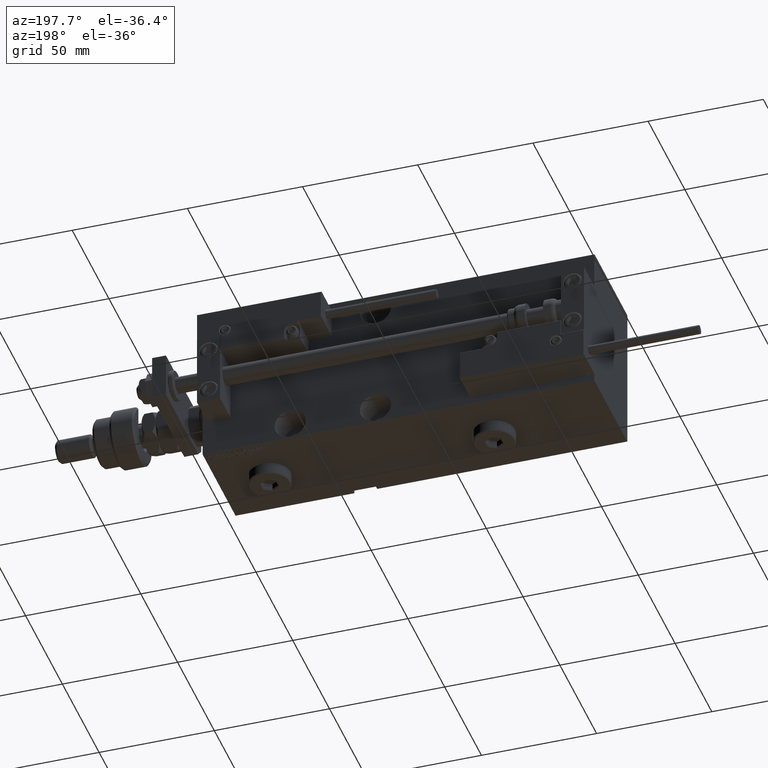
[diagram: clean part render]
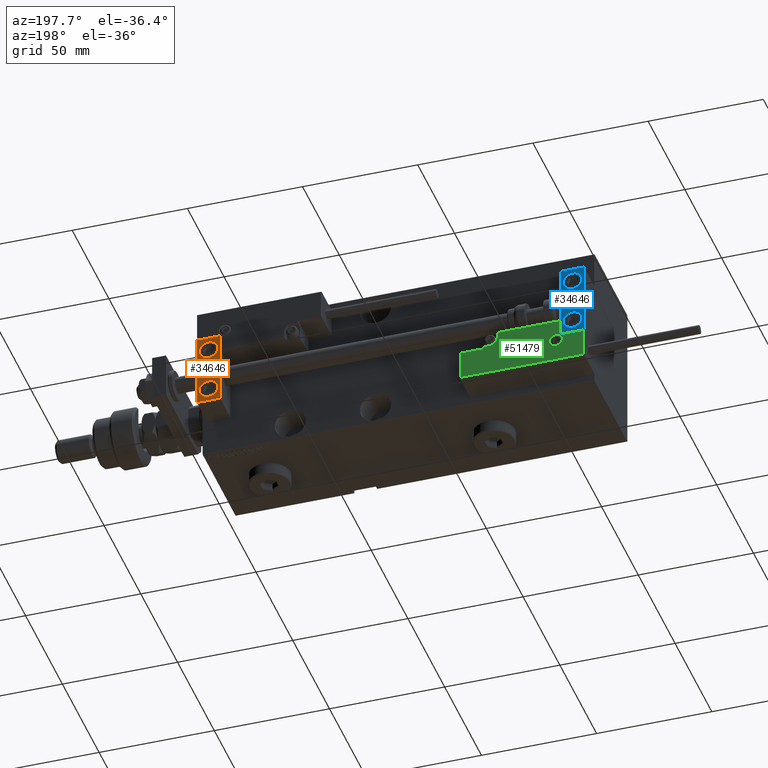
[diagram: same view with three faces highlighted in distinct colors, each labeled with its STEP entity id]
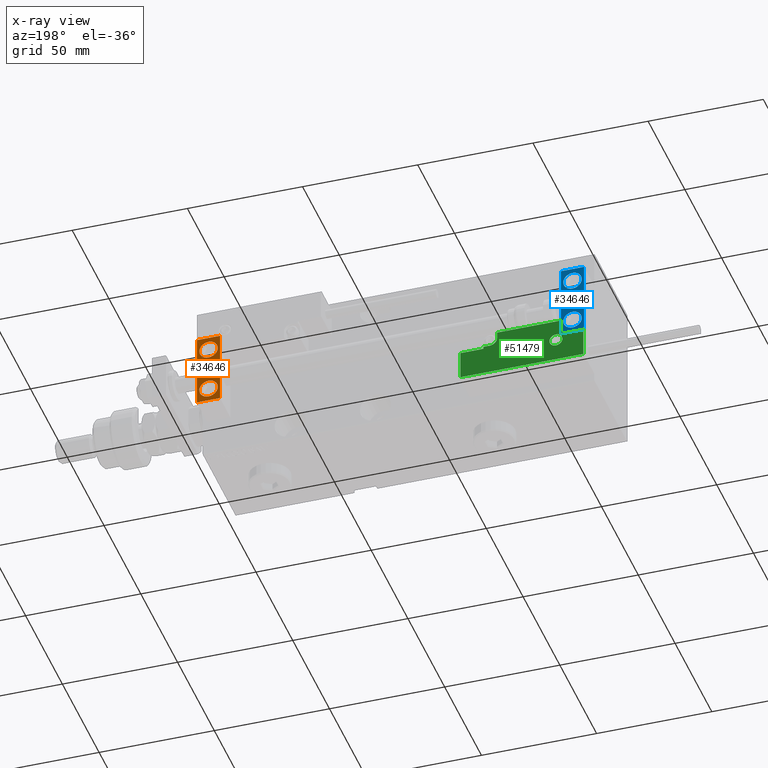
[diagram: x-ray of the same camera — body ghosted, the three highlighted faces saturated]
A machine part, auxiliary view with three faces highlighted in distinct colors.
The next image is the same camera in x-ray (body ghosted, the three faces saturated) — at least one of them is partly hidden behind the body in this view.
Their STEP definitions:

[orange] entity #34646 — the highlighted planar face has unit normal (0, 1, 0).
#1629 = DIRECTION ( 'NONE',  ( 0.000000000000000000, 1.000000000000000000, -6.065466699219605527E-17 ) ) ;
#1776 = CARTESIAN_POINT ( 'NONE',  ( 0.000000000000000000, 7.000000000000000000, 15.99999999999999289 ) ) ;
#2781 = EDGE_CURVE ( 'NONE', #3088, #15654, #49762, .T. ) ;
#2899 = DIRECTION ( 'NONE',  ( 1.848892746611746419E-32, -1.000000000000000000, 6.616381192988677562E-17 ) ) ;
#3088 = VERTEX_POINT ( 'NONE', #25826 ) ;
#5323 = CARTESIAN_POINT ( 'NONE',  ( 10.00000000000000000, 7.000000000000000000, 15.99999999999999289 ) ) ;
#5410 = ORIENTED_EDGE ( 'NONE', *, *, #31654, .F. ) ;
#6004 = ORIENTED_EDGE ( 'NONE', *, *, #14719, .T. ) ;
#6297 = CARTESIAN_POINT ( 'NONE',  ( 5.000000000000000888, 6.999999999999999112, -10.00000000000000178 ) ) ;
#6783 = AXIS2_PLACEMENT_3D ( 'NONE', #34580, #34314, #34048 ) ;
#7239 = DIRECTION ( 'NONE',  ( 0.000000000000000000, 0.000000000000000000, 1.000000000000000000 ) ) ;
#7829 = VERTEX_POINT ( 'NONE', #34836 ) ;
#10105 = ORIENTED_EDGE ( 'NONE', *, *, #33243, .T. ) ;
#10490 = EDGE_CURVE ( 'NONE', #45674, #37100, #49261, .T. ) ;
#12777 = CIRCLE ( 'NONE', #36165, 4.000000000000000888 ) ;
#13663 = AXIS2_PLACEMENT_3D ( 'NONE', #32500, #2899, #7239 ) ;
#13792 = ORIENTED_EDGE ( 'NONE', *, *, #51170, .T. ) ;
#14342 = EDGE_CURVE ( 'NONE', #15654, #3088, #12777, .T. ) ;
#14374 = CARTESIAN_POINT ( 'NONE',  ( 5.000000000000000888, 6.999999999999999112, -10.00000000000000178 ) ) ;
#14677 = FACE_BOUND ( 'NONE', #18217, .T. ) ;
#14719 = EDGE_CURVE ( 'NONE', #22455, #50206, #37105, .T. ) ;
#15654 = VERTEX_POINT ( 'NONE', #21106 ) ;
#15760 = ORIENTED_EDGE ( 'NONE', *, *, #10490, .T. ) ;
#15882 = EDGE_CURVE ( 'NONE', #45674, #36510, #28677, .T. ) ;
#17257 = DIRECTION ( 'NONE',  ( 0.000000000000000000, 0.000000000000000000, -1.000000000000000000 ) ) ;
#18176 = DIRECTION ( 'NONE',  ( 0.000000000000000000, 0.000000000000000000, 1.000000000000000000 ) ) ;
#18217 = EDGE_LOOP ( 'NONE', ( #31491, #42835 ) ) ;
#18759 = DIRECTION ( 'NONE',  ( -0.000000000000000000, 1.000000000000000000, 0.000000000000000000 ) ) ;
#19284 = FACE_BOUND ( 'NONE', #33348, .T. ) ;
#20222 = CARTESIAN_POINT ( 'NONE',  ( 0.000000000000000000, 7.000000000000000000, 15.99999999999999289 ) ) ;
#21106 = CARTESIAN_POINT ( 'NONE',  ( 5.000000000000000888, 6.999999999999999112, -6.000000000000000888 ) ) ;
#22025 = AXIS2_PLACEMENT_3D ( 'NONE', #6297, #48122, #22876 ) ;
#22455 = VERTEX_POINT ( 'NONE', #37259 ) ;
#22876 = DIRECTION ( 'NONE',  ( 0.000000000000000000, 0.000000000000000000, 1.000000000000000000 ) ) ;
#23590 = CARTESIAN_POINT ( 'NONE',  ( 10.00000000000000000, 7.000000000000000000, -16.00000000000000711 ) ) ;
#24880 = DIRECTION ( 'NONE',  ( -1.000000000000000000, -0.000000000000000000, -0.000000000000000000 ) ) ;
#25826 = CARTESIAN_POINT ( 'NONE',  ( 5.000000000000001776, 6.999999999999999112, -14.00000000000000178 ) ) ;
#26722 = VECTOR ( 'NONE', #24880, 1000.000000000000000 ) ;
#27467 = DIRECTION ( 'NONE',  ( 0.000000000000000000, -0.000000000000000000, 1.000000000000000000 ) ) ;
#27480 = EDGE_LOOP ( 'NONE', ( #5410, #50421, #15760, #13792 ) ) ;
#27924 = CARTESIAN_POINT ( 'NONE',  ( 10.00000000000000000, 7.000000000000000000, -16.00000000000000711 ) ) ;
#28677 = LINE ( 'NONE', #36809, #26722 ) ;
#31491 = ORIENTED_EDGE ( 'NONE', *, *, #14342, .F. ) ;
#31654 = EDGE_CURVE ( 'NONE', #36510, #7829, #46311, .T. ) ;
#31941 = CIRCLE ( 'NONE', #6783, 4.000000000000000000 ) ;
#32407 = CARTESIAN_POINT ( 'NONE',  ( 10.00000000000000000, 7.000000000000000000, 15.99999999999999289 ) ) ;
#32500 = CARTESIAN_POINT ( 'NONE',  ( 5.000000000000000888, 7.000000000000000888, 10.00000000000000178 ) ) ;
#33243 = EDGE_CURVE ( 'NONE', #50206, #22455, #31941, .T. ) ;
#33348 = EDGE_LOOP ( 'NONE', ( #10105, #6004 ) ) ;
#34048 = DIRECTION ( 'NONE',  ( 0.000000000000000000, 0.000000000000000000, 1.000000000000000000 ) ) ;
#34314 = DIRECTION ( 'NONE',  ( 1.848892746611746419E-32, -1.000000000000000000, 6.616381192988677562E-17 ) ) ;
#34580 = CARTESIAN_POINT ( 'NONE',  ( 5.000000000000000888, 7.000000000000000888, 10.00000000000000178 ) ) ;
#34646 = ADVANCED_FACE ( 'NONE', ( #43471, #14677, #19284 ), #43206, .T. ) ;
#34836 = CARTESIAN_POINT ( 'NONE',  ( 0.000000000000000000, 7.000000000000000000, -16.00000000000000711 ) ) ;
#34918 = VECTOR ( 'NONE', #36059, 1000.000000000000000 ) ;
#35788 = LINE ( 'NONE', #27924, #34918 ) ;
#36059 = DIRECTION ( 'NONE',  ( -1.000000000000000000, -0.000000000000000000, -0.000000000000000000 ) ) ;
#36165 = AXIS2_PLACEMENT_3D ( 'NONE', #14374, #1629, #18176 ) ;
#36510 = VERTEX_POINT ( 'NONE', #20222 ) ;
#36809 = CARTESIAN_POINT ( 'NONE',  ( 10.00000000000000000, 7.000000000000000000, 15.99999999999999289 ) ) ;
#37100 = VERTEX_POINT ( 'NONE', #23590 ) ;
#37105 = CIRCLE ( 'NONE', #13663, 4.000000000000000000 ) ;
#37259 = CARTESIAN_POINT ( 'NONE',  ( 5.000000000000001776, 7.000000000000000888, 6.000000000000000888 ) ) ;
#42089 = VECTOR ( 'NONE', #53360, 1000.000000000000000 ) ;
#42835 = ORIENTED_EDGE ( 'NONE', *, *, #2781, .F. ) ;
#43139 = VECTOR ( 'NONE', #17257, 1000.000000000000000 ) ;
#43206 = PLANE ( 'NONE',  #45008 ) ;
#43471 = FACE_OUTER_BOUND ( 'NONE', #27480, .T. ) ;
#45008 = AXIS2_PLACEMENT_3D ( 'NONE', #51644, #18759, #27467 ) ;
#45674 = VERTEX_POINT ( 'NONE', #5323 ) ;
#46311 = LINE ( 'NONE', #1776, #43139 ) ;
#48122 = DIRECTION ( 'NONE',  ( 0.000000000000000000, 1.000000000000000000, -6.065466699219605527E-17 ) ) ;
#49261 = LINE ( 'NONE', #32407, #42089 ) ;
#49279 = CARTESIAN_POINT ( 'NONE',  ( 5.000000000000000888, 7.000000000000000888, 14.00000000000000178 ) ) ;
#49762 = CIRCLE ( 'NONE', #22025, 4.000000000000000888 ) ;
#50206 = VERTEX_POINT ( 'NONE', #49279 ) ;
#50421 = ORIENTED_EDGE ( 'NONE', *, *, #15882, .F. ) ;
#51170 = EDGE_CURVE ( 'NONE', #37100, #7829, #35788, .T. ) ;
#51644 = CARTESIAN_POINT ( 'NONE',  ( 10.00000000000000000, 7.000000000000000000, 15.99999999999999289 ) ) ;
#53360 = DIRECTION ( 'NONE',  ( 0.000000000000000000, 0.000000000000000000, -1.000000000000000000 ) ) ;

[blue] entity #34646 — the highlighted planar face has unit normal (-0, 1, -0).
#1629 = DIRECTION ( 'NONE',  ( 0.000000000000000000, 1.000000000000000000, -6.065466699219605527E-17 ) ) ;
#1776 = CARTESIAN_POINT ( 'NONE',  ( 0.000000000000000000, 7.000000000000000000, 15.99999999999999289 ) ) ;
#2781 = EDGE_CURVE ( 'NONE', #3088, #15654, #49762, .T. ) ;
#2899 = DIRECTION ( 'NONE',  ( 1.848892746611746419E-32, -1.000000000000000000, 6.616381192988677562E-17 ) ) ;
#3088 = VERTEX_POINT ( 'NONE', #25826 ) ;
#5323 = CARTESIAN_POINT ( 'NONE',  ( 10.00000000000000000, 7.000000000000000000, 15.99999999999999289 ) ) ;
#5410 = ORIENTED_EDGE ( 'NONE', *, *, #31654, .F. ) ;
#6004 = ORIENTED_EDGE ( 'NONE', *, *, #14719, .T. ) ;
#6297 = CARTESIAN_POINT ( 'NONE',  ( 5.000000000000000888, 6.999999999999999112, -10.00000000000000178 ) ) ;
#6783 = AXIS2_PLACEMENT_3D ( 'NONE', #34580, #34314, #34048 ) ;
#7239 = DIRECTION ( 'NONE',  ( 0.000000000000000000, 0.000000000000000000, 1.000000000000000000 ) ) ;
#7829 = VERTEX_POINT ( 'NONE', #34836 ) ;
#10105 = ORIENTED_EDGE ( 'NONE', *, *, #33243, .T. ) ;
#10490 = EDGE_CURVE ( 'NONE', #45674, #37100, #49261, .T. ) ;
#12777 = CIRCLE ( 'NONE', #36165, 4.000000000000000888 ) ;
#13663 = AXIS2_PLACEMENT_3D ( 'NONE', #32500, #2899, #7239 ) ;
#13792 = ORIENTED_EDGE ( 'NONE', *, *, #51170, .T. ) ;
#14342 = EDGE_CURVE ( 'NONE', #15654, #3088, #12777, .T. ) ;
#14374 = CARTESIAN_POINT ( 'NONE',  ( 5.000000000000000888, 6.999999999999999112, -10.00000000000000178 ) ) ;
#14677 = FACE_BOUND ( 'NONE', #18217, .T. ) ;
#14719 = EDGE_CURVE ( 'NONE', #22455, #50206, #37105, .T. ) ;
#15654 = VERTEX_POINT ( 'NONE', #21106 ) ;
#15760 = ORIENTED_EDGE ( 'NONE', *, *, #10490, .T. ) ;
#15882 = EDGE_CURVE ( 'NONE', #45674, #36510, #28677, .T. ) ;
#17257 = DIRECTION ( 'NONE',  ( 0.000000000000000000, 0.000000000000000000, -1.000000000000000000 ) ) ;
#18176 = DIRECTION ( 'NONE',  ( 0.000000000000000000, 0.000000000000000000, 1.000000000000000000 ) ) ;
#18217 = EDGE_LOOP ( 'NONE', ( #31491, #42835 ) ) ;
#18759 = DIRECTION ( 'NONE',  ( -0.000000000000000000, 1.000000000000000000, 0.000000000000000000 ) ) ;
#19284 = FACE_BOUND ( 'NONE', #33348, .T. ) ;
#20222 = CARTESIAN_POINT ( 'NONE',  ( 0.000000000000000000, 7.000000000000000000, 15.99999999999999289 ) ) ;
#21106 = CARTESIAN_POINT ( 'NONE',  ( 5.000000000000000888, 6.999999999999999112, -6.000000000000000888 ) ) ;
#22025 = AXIS2_PLACEMENT_3D ( 'NONE', #6297, #48122, #22876 ) ;
#22455 = VERTEX_POINT ( 'NONE', #37259 ) ;
#22876 = DIRECTION ( 'NONE',  ( 0.000000000000000000, 0.000000000000000000, 1.000000000000000000 ) ) ;
#23590 = CARTESIAN_POINT ( 'NONE',  ( 10.00000000000000000, 7.000000000000000000, -16.00000000000000711 ) ) ;
#24880 = DIRECTION ( 'NONE',  ( -1.000000000000000000, -0.000000000000000000, -0.000000000000000000 ) ) ;
#25826 = CARTESIAN_POINT ( 'NONE',  ( 5.000000000000001776, 6.999999999999999112, -14.00000000000000178 ) ) ;
#26722 = VECTOR ( 'NONE', #24880, 1000.000000000000000 ) ;
#27467 = DIRECTION ( 'NONE',  ( 0.000000000000000000, -0.000000000000000000, 1.000000000000000000 ) ) ;
#27480 = EDGE_LOOP ( 'NONE', ( #5410, #50421, #15760, #13792 ) ) ;
#27924 = CARTESIAN_POINT ( 'NONE',  ( 10.00000000000000000, 7.000000000000000000, -16.00000000000000711 ) ) ;
#28677 = LINE ( 'NONE', #36809, #26722 ) ;
#31491 = ORIENTED_EDGE ( 'NONE', *, *, #14342, .F. ) ;
#31654 = EDGE_CURVE ( 'NONE', #36510, #7829, #46311, .T. ) ;
#31941 = CIRCLE ( 'NONE', #6783, 4.000000000000000000 ) ;
#32407 = CARTESIAN_POINT ( 'NONE',  ( 10.00000000000000000, 7.000000000000000000, 15.99999999999999289 ) ) ;
#32500 = CARTESIAN_POINT ( 'NONE',  ( 5.000000000000000888, 7.000000000000000888, 10.00000000000000178 ) ) ;
#33243 = EDGE_CURVE ( 'NONE', #50206, #22455, #31941, .T. ) ;
#33348 = EDGE_LOOP ( 'NONE', ( #10105, #6004 ) ) ;
#34048 = DIRECTION ( 'NONE',  ( 0.000000000000000000, 0.000000000000000000, 1.000000000000000000 ) ) ;
#34314 = DIRECTION ( 'NONE',  ( 1.848892746611746419E-32, -1.000000000000000000, 6.616381192988677562E-17 ) ) ;
#34580 = CARTESIAN_POINT ( 'NONE',  ( 5.000000000000000888, 7.000000000000000888, 10.00000000000000178 ) ) ;
#34646 = ADVANCED_FACE ( 'NONE', ( #43471, #14677, #19284 ), #43206, .T. ) ;
#34836 = CARTESIAN_POINT ( 'NONE',  ( 0.000000000000000000, 7.000000000000000000, -16.00000000000000711 ) ) ;
#34918 = VECTOR ( 'NONE', #36059, 1000.000000000000000 ) ;
#35788 = LINE ( 'NONE', #27924, #34918 ) ;
#36059 = DIRECTION ( 'NONE',  ( -1.000000000000000000, -0.000000000000000000, -0.000000000000000000 ) ) ;
#36165 = AXIS2_PLACEMENT_3D ( 'NONE', #14374, #1629, #18176 ) ;
#36510 = VERTEX_POINT ( 'NONE', #20222 ) ;
#36809 = CARTESIAN_POINT ( 'NONE',  ( 10.00000000000000000, 7.000000000000000000, 15.99999999999999289 ) ) ;
#37100 = VERTEX_POINT ( 'NONE', #23590 ) ;
#37105 = CIRCLE ( 'NONE', #13663, 4.000000000000000000 ) ;
#37259 = CARTESIAN_POINT ( 'NONE',  ( 5.000000000000001776, 7.000000000000000888, 6.000000000000000888 ) ) ;
#42089 = VECTOR ( 'NONE', #53360, 1000.000000000000000 ) ;
#42835 = ORIENTED_EDGE ( 'NONE', *, *, #2781, .F. ) ;
#43139 = VECTOR ( 'NONE', #17257, 1000.000000000000000 ) ;
#43206 = PLANE ( 'NONE',  #45008 ) ;
#43471 = FACE_OUTER_BOUND ( 'NONE', #27480, .T. ) ;
#45008 = AXIS2_PLACEMENT_3D ( 'NONE', #51644, #18759, #27467 ) ;
#45674 = VERTEX_POINT ( 'NONE', #5323 ) ;
#46311 = LINE ( 'NONE', #1776, #43139 ) ;
#48122 = DIRECTION ( 'NONE',  ( 0.000000000000000000, 1.000000000000000000, -6.065466699219605527E-17 ) ) ;
#49261 = LINE ( 'NONE', #32407, #42089 ) ;
#49279 = CARTESIAN_POINT ( 'NONE',  ( 5.000000000000000888, 7.000000000000000888, 14.00000000000000178 ) ) ;
#49762 = CIRCLE ( 'NONE', #22025, 4.000000000000000888 ) ;
#50206 = VERTEX_POINT ( 'NONE', #49279 ) ;
#50421 = ORIENTED_EDGE ( 'NONE', *, *, #15882, .F. ) ;
#51170 = EDGE_CURVE ( 'NONE', #37100, #7829, #35788, .T. ) ;
#51644 = CARTESIAN_POINT ( 'NONE',  ( 10.00000000000000000, 7.000000000000000000, 15.99999999999999289 ) ) ;
#53360 = DIRECTION ( 'NONE',  ( 0.000000000000000000, 0.000000000000000000, -1.000000000000000000 ) ) ;

[green] entity #51479 — the highlighted planar face has unit normal (-0, 1, 0).
#18 = CARTESIAN_POINT ( 'NONE',  ( 26.70000000000006324, 20.00000000000001776, 14.00000000000000000 ) ) ;
#237 = VECTOR ( 'NONE', #37733, 1000.000000000000000 ) ;
#428 = VERTEX_POINT ( 'NONE', #47667 ) ;
#722 = CARTESIAN_POINT ( 'NONE',  ( 26.70000000000006324, 19.70000000000001705, 14.00000000000000000 ) ) ;
#1484 = EDGE_CURVE ( 'NONE', #7654, #8091, #53431, .T. ) ;
#1565 = VERTEX_POINT ( 'NONE', #50659 ) ;
#1793 = LINE ( 'NONE', #17808, #39454 ) ;
#4564 = AXIS2_PLACEMENT_3D ( 'NONE', #15076, #18890, #6681 ) ;
#4792 = CARTESIAN_POINT ( 'NONE',  ( 10.69999999999999929, 3.000000000000003109, 14.00000000000000000 ) ) ;
#4845 = AXIS2_PLACEMENT_3D ( 'NONE', #19316, #35622, #39702 ) ;
#4927 = CARTESIAN_POINT ( 'NONE',  ( -14.79999999999994920, 9.800000000000004263, 14.00000000000000000 ) ) ;
#5037 = ORIENTED_EDGE ( 'NONE', *, *, #1484, .T. ) ;
#5694 = CARTESIAN_POINT ( 'NONE',  ( 10.69999999999999929, 0.3000000000000032085, 14.00000000000000000 ) ) ;
#5998 = CARTESIAN_POINT ( 'NONE',  ( 10.69999999999999929, 3.000000000000003109, 14.00000000000000000 ) ) ;
#6681 = DIRECTION ( 'NONE',  ( 1.000000000000000000, 0.000000000000000000, 0.000000000000000000 ) ) ;
#7654 = VERTEX_POINT ( 'NONE', #37321 ) ;
#7934 = VERTEX_POINT ( 'NONE', #48139 ) ;
#8069 = DIRECTION ( 'NONE',  ( -0.000000000000000000, 1.000000000000000000, -0.000000000000000000 ) ) ;
#8091 = VERTEX_POINT ( 'NONE', #22558 ) ;
#8138 = CARTESIAN_POINT ( 'NONE',  ( -26.69999999999994600, 7.300000000000005151, 14.00000000000000000 ) ) ;
#8725 = VERTEX_POINT ( 'NONE', #722 ) ;
#8761 = EDGE_CURVE ( 'NONE', #15052, #428, #1793, .T. ) ;
#8937 = DIRECTION ( 'NONE',  ( -1.000000000000000000, 6.424901762877063495E-17, -0.000000000000000000 ) ) ;
#10474 = FACE_OUTER_BOUND ( 'NONE', #14749, .T. ) ;
#10876 = LINE ( 'NONE', #19026, #33720 ) ;
#10997 = EDGE_CURVE ( 'NONE', #1565, #8725, #45366, .T. ) ;
#11414 = VECTOR ( 'NONE', #22029, 1000.000000000000000 ) ;
#11831 = DIRECTION ( 'NONE',  ( 9.912705577010318647E-16, 1.000000000000000000, 0.000000000000000000 ) ) ;
#12335 = VECTOR ( 'NONE', #8069, 1000.000000000000000 ) ;
#12578 = ORIENTED_EDGE ( 'NONE', *, *, #39420, .T. ) ;
#13323 = VERTEX_POINT ( 'NONE', #18707 ) ;
#13977 = ORIENTED_EDGE ( 'NONE', *, *, #45572, .T. ) ;
#14511 = ORIENTED_EDGE ( 'NONE', *, *, #50978, .T. ) ;
#14749 = EDGE_LOOP ( 'NONE', ( #22464, #51521, #13977, #17413, #5037, #12578, #14511, #17951, #31352, #25955, #47325 ) ) ;
#15052 = VERTEX_POINT ( 'NONE', #48404 ) ;
#15076 = CARTESIAN_POINT ( 'NONE',  ( 0.000000000000000000, 0.000000000000000000, 14.00000000000000000 ) ) ;
#16006 = CARTESIAN_POINT ( 'NONE',  ( -16.99999999999999289, 7.300000000000003375, 14.00000000000000000 ) ) ;
#17413 = ORIENTED_EDGE ( 'NONE', *, *, #45812, .T. ) ;
#17808 = CARTESIAN_POINT ( 'NONE',  ( -16.69999999999999218, 3.252606517456513302E-15, 14.00000000000000000 ) ) ;
#17951 = ORIENTED_EDGE ( 'NONE', *, *, #10997, .T. ) ;
#18348 = FACE_BOUND ( 'NONE', #22531, .T. ) ;
#18707 = CARTESIAN_POINT ( 'NONE',  ( 16.69999999999999929, 7.300000000000009592, 14.00000000000000000 ) ) ;
#18887 = CARTESIAN_POINT ( 'NONE',  ( -26.69999999999993534, 19.70000000000002061, 14.00000000000000000 ) ) ;
#18890 = DIRECTION ( 'NONE',  ( -0.000000000000000000, 0.000000000000000000, 1.000000000000000000 ) ) ;
#19026 = CARTESIAN_POINT ( 'NONE',  ( -26.69999999999994600, 7.000000000000005329, 14.00000000000000000 ) ) ;
#19316 = CARTESIAN_POINT ( 'NONE',  ( -14.79999999999994920, 9.800000000000004263, 14.00000000000000000 ) ) ;
#20353 = LINE ( 'NONE', #16006, #51363 ) ;
#21714 = AXIS2_PLACEMENT_3D ( 'NONE', #41060, #31130, #24260 ) ;
#21985 = ORIENTED_EDGE ( 'NONE', *, *, #24799, .T. ) ;
#22029 = DIRECTION ( 'NONE',  ( 1.000000000000000000, -0.000000000000000000, 0.000000000000000000 ) ) ;
#22464 = ORIENTED_EDGE ( 'NONE', *, *, #8761, .T. ) ;
#22531 = EDGE_LOOP ( 'NONE', ( #21985, #44333 ) ) ;
#22558 = CARTESIAN_POINT ( 'NONE',  ( 16.69999999999999929, 6.300000000000003375, 14.00000000000000000 ) ) ;
#22640 = EDGE_CURVE ( 'NONE', #44770, #7934, #46396, .T. ) ;
#22801 = VECTOR ( 'NONE', #49330, 1000.000000000000000 ) ;
#23539 = CARTESIAN_POINT ( 'NONE',  ( 16.69999999999999929, 7.000000000000009770, 14.00000000000000000 ) ) ;
#24260 = DIRECTION ( 'NONE',  ( 1.000000000000000000, 0.000000000000000000, 0.000000000000000000 ) ) ;
#24459 = CARTESIAN_POINT ( 'NONE',  ( 27.00000000000006395, 7.300000000000007816, 14.00000000000000000 ) ) ;
#24732 = CARTESIAN_POINT ( 'NONE',  ( -26.99999999999993605, 19.70000000000002061, 14.00000000000000000 ) ) ;
#24799 = EDGE_CURVE ( 'NONE', #7934, #44770, #30869, .T. ) ;
#24888 = CARTESIAN_POINT ( 'NONE',  ( 17.00000000000000000, 6.300000000000003375, 14.00000000000000000 ) ) ;
#24998 = LINE ( 'NONE', #24459, #237 ) ;
#25955 = ORIENTED_EDGE ( 'NONE', *, *, #34589, .T. ) ;
#26106 = LINE ( 'NONE', #42651, #11414 ) ;
#28788 = CARTESIAN_POINT ( 'NONE',  ( -17.59999999999994813, 9.800000000000004263, 14.00000000000000000 ) ) ;
#29087 = DIRECTION ( 'NONE',  ( 0.000000000000000000, 1.000000000000000000, -0.000000000000000000 ) ) ;
#29339 = LINE ( 'NONE', #24732, #34960 ) ;
#29936 = AXIS2_PLACEMENT_3D ( 'NONE', #4927, #46734, #52379 ) ;
#30014 = VECTOR ( 'NONE', #29087, 1000.000000000000000 ) ;
#30869 = CIRCLE ( 'NONE', #4845, 2.800000000000000266 ) ;
#30950 = VERTEX_POINT ( 'NONE', #5694 ) ;
#31130 = DIRECTION ( 'NONE',  ( 0.000000000000000000, -0.000000000000000000, -1.000000000000000000 ) ) ;
#31352 = ORIENTED_EDGE ( 'NONE', *, *, #51886, .T. ) ;
#33720 = VECTOR ( 'NONE', #34788, 1000.000000000000000 ) ;
#34589 = EDGE_CURVE ( 'NONE', #36415, #36711, #10876, .T. ) ;
#34729 = CIRCLE ( 'NONE', #21714, 3.299999999999997158 ) ;
#34788 = DIRECTION ( 'NONE',  ( -8.006416042969869188E-16, -1.000000000000000000, 0.000000000000000000 ) ) ;
#34960 = VECTOR ( 'NONE', #8937, 1000.000000000000000 ) ;
#35622 = DIRECTION ( 'NONE',  ( 0.000000000000000000, -0.000000000000000000, -1.000000000000000000 ) ) ;
#35995 = PLANE ( 'NONE',  #4564 ) ;
#36415 = VERTEX_POINT ( 'NONE', #18887 ) ;
#36711 = VERTEX_POINT ( 'NONE', #8138 ) ;
#37321 = CARTESIAN_POINT ( 'NONE',  ( 13.99999999999999822, 6.300000000000001599, 14.00000000000000000 ) ) ;
#37733 = DIRECTION ( 'NONE',  ( 1.000000000000000000, -1.734723475976796001E-16, 0.000000000000000000 ) ) ;
#39420 = EDGE_CURVE ( 'NONE', #8091, #13323, #53149, .T. ) ;
#39454 = VECTOR ( 'NONE', #51496, 1000.000000000000000 ) ;
#39702 = DIRECTION ( 'NONE',  ( 1.000000000000000000, 0.000000000000000000, 0.000000000000000000 ) ) ;
#40930 = LINE ( 'NONE', #4792, #12335 ) ;
#41060 = CARTESIAN_POINT ( 'NONE',  ( 13.99999999999999822, 3.000000000000002665, 14.00000000000000000 ) ) ;
#42651 = CARTESIAN_POINT ( 'NONE',  ( 11.00000000000000000, 0.3000000000000032085, 14.00000000000000000 ) ) ;
#43441 = VECTOR ( 'NONE', #11831, 1000.000000000000000 ) ;
#44333 = ORIENTED_EDGE ( 'NONE', *, *, #22640, .T. ) ;
#44595 = EDGE_CURVE ( 'NONE', #428, #30950, #26106, .T. ) ;
#44770 = VERTEX_POINT ( 'NONE', #28788 ) ;
#44782 = EDGE_CURVE ( 'NONE', #36711, #15052, #20353, .T. ) ;
#45366 = LINE ( 'NONE', #18, #30014 ) ;
#45572 = EDGE_CURVE ( 'NONE', #30950, #45995, #40930, .T. ) ;
#45812 = EDGE_CURVE ( 'NONE', #45995, #7654, #34729, .T. ) ;
#45995 = VERTEX_POINT ( 'NONE', #5998 ) ;
#46396 = CIRCLE ( 'NONE', #29936, 2.800000000000000266 ) ;
#46734 = DIRECTION ( 'NONE',  ( 0.000000000000000000, -0.000000000000000000, -1.000000000000000000 ) ) ;
#47325 = ORIENTED_EDGE ( 'NONE', *, *, #44782, .T. ) ;
#47667 = CARTESIAN_POINT ( 'NONE',  ( -16.69999999999999218, 0.3000000000000032085, 14.00000000000000000 ) ) ;
#48139 = CARTESIAN_POINT ( 'NONE',  ( -11.99999999999994849, 9.800000000000004263, 14.00000000000000000 ) ) ;
#48404 = CARTESIAN_POINT ( 'NONE',  ( -16.69999999999999218, 7.300000000000003375, 14.00000000000000000 ) ) ;
#48884 = DIRECTION ( 'NONE',  ( 1.000000000000000000, -1.734723475976815230E-16, 0.000000000000000000 ) ) ;
#49330 = DIRECTION ( 'NONE',  ( 1.000000000000000000, 5.782411586589357639E-16, -0.000000000000000000 ) ) ;
#50659 = CARTESIAN_POINT ( 'NONE',  ( 26.70000000000006324, 7.300000000000007816, 14.00000000000000000 ) ) ;
#50978 = EDGE_CURVE ( 'NONE', #13323, #1565, #24998, .T. ) ;
#51363 = VECTOR ( 'NONE', #48884, 1000.000000000000000 ) ;
#51479 = ADVANCED_FACE ( 'NONE', ( #18348, #10474 ), #35995, .T. ) ;
#51496 = DIRECTION ( 'NONE',  ( 0.000000000000000000, -1.000000000000000000, 0.000000000000000000 ) ) ;
#51521 = ORIENTED_EDGE ( 'NONE', *, *, #44595, .T. ) ;
#51886 = EDGE_CURVE ( 'NONE', #8725, #36415, #29339, .T. ) ;
#52379 = DIRECTION ( 'NONE',  ( 1.000000000000000000, 0.000000000000000000, 0.000000000000000000 ) ) ;
#53149 = LINE ( 'NONE', #23539, #43441 ) ;
#53431 = LINE ( 'NONE', #24888, #22801 ) ;